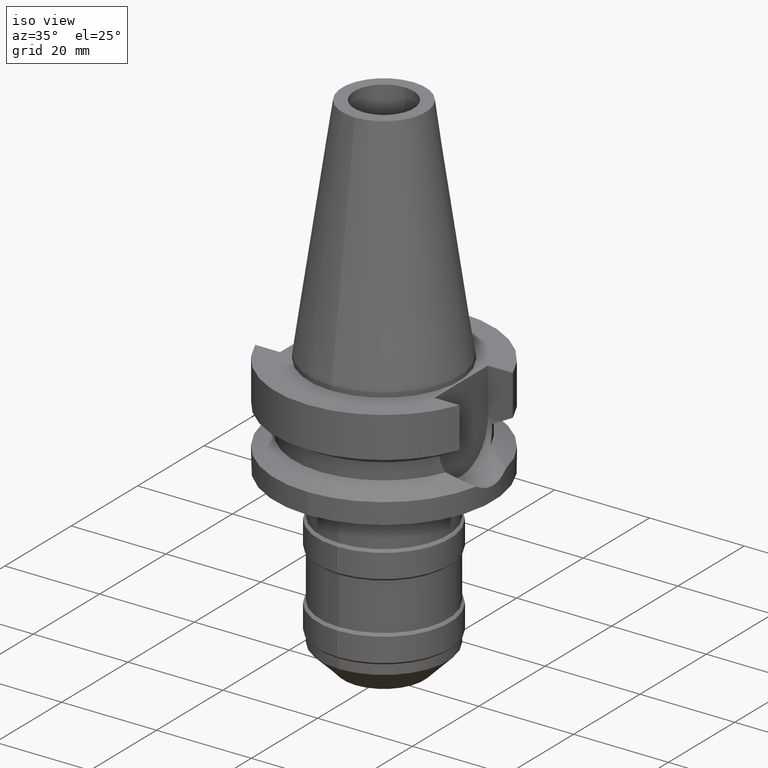
[diagram: clean part render]
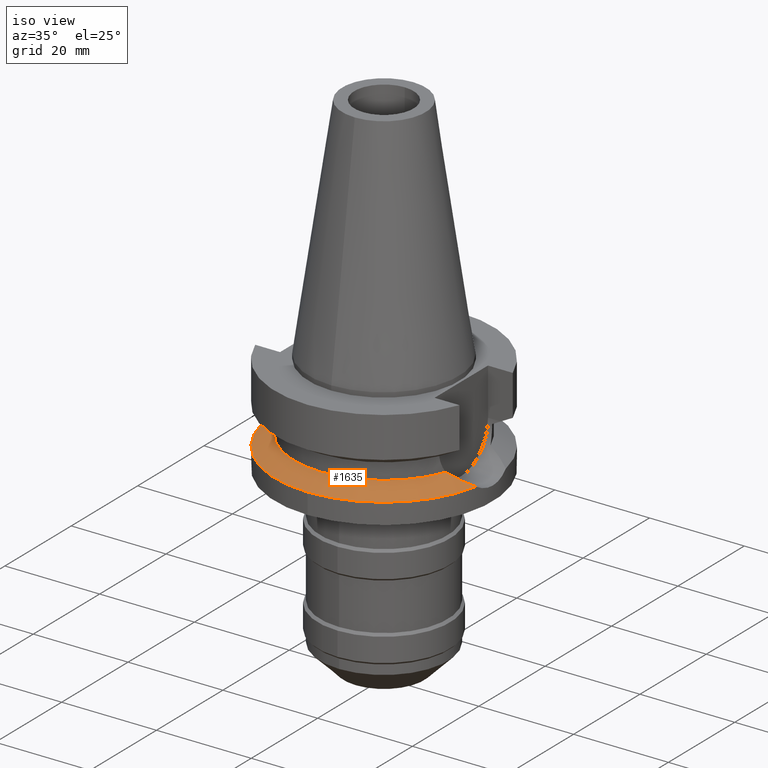
[diagram: same view with one face highlighted and labeled with its STEP entity id]
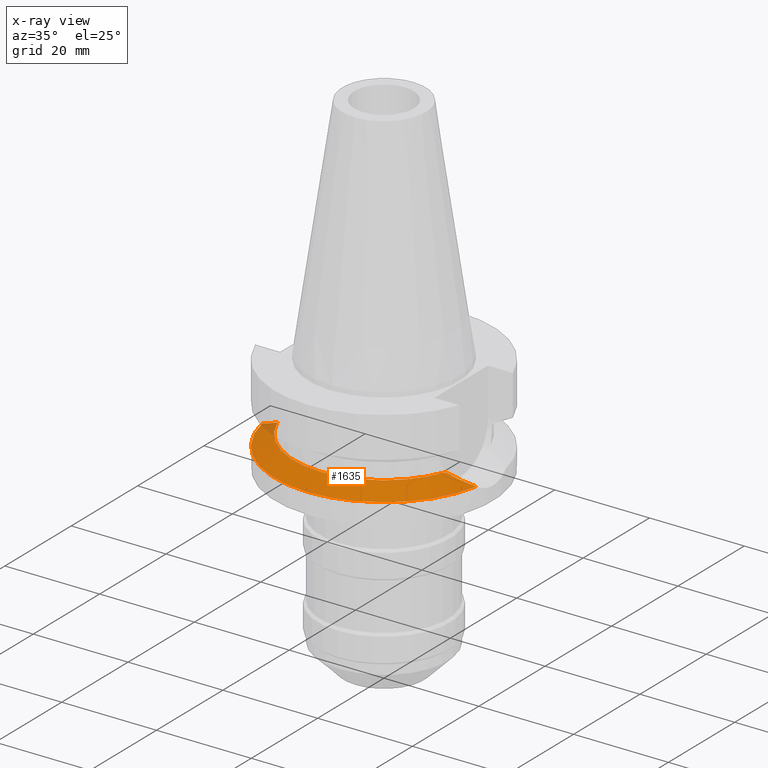
[diagram: x-ray of the same camera — body ghosted, the highlighted face saturated]
A machine part, iso view. The second image highlights one B-rep face of the part: STEP entity #1635.
The next image is the same camera in x-ray: the body ghosted, the highlighted face saturated — about 2% of this face is hidden behind the body in this view.
In plain terms, the highlighted conical surface has half-angle 60 deg.
Its self-contained STEP definition (entity closure, byte-faithful):
#430=CARTESIAN_POINT('',(-2.255786346208E1,-4.488072640470E0,
-1.763279163029E1));
#431=CARTESIAN_POINT('',(-2.228017927997E1,-4.688569610186E0,
-1.749814057216E1));
#432=CARTESIAN_POINT('',(-2.166787821129E1,-5.090950594505E0,
-1.720152106878E1));
#433=CARTESIAN_POINT('',(-2.057960286831E1,-5.677571393765E0,
-1.667586700988E1));
#434=CARTESIAN_POINT('',(-1.929756333508E1,-6.240846540616E0,
-1.605908252299E1));
#435=CARTESIAN_POINT('',(-1.829480318564E1,-6.592754206729E0,
-1.557936874226E1));
#436=CARTESIAN_POINT('',(-1.775736593456E1,-6.758398853744E0,
-1.532339055353E1));
#441=CARTESIAN_POINT('',(0.E0,1.022848384030E-14,-1.532339055353E1));
#442=DIRECTION('',(0.E0,0.E0,1.E0));
#443=DIRECTION('',(-9.345982070819E-1,-3.557052028286E-1,0.E0));
#444=AXIS2_PLACEMENT_3D('',#441,#442,#443);
#449=CARTESIAN_POINT('',(0.E0,1.022848384030E-14,-1.532339055353E1));
#450=DIRECTION('',(0.E0,0.E0,1.E0));
#451=DIRECTION('',(0.E0,-1.E0,0.E0));
#452=AXIS2_PLACEMENT_3D('',#449,#450,#451);
#457=CARTESIAN_POINT('',(1.775736593456E1,-6.758398853744E0,-1.532339055353E1));
#458=CARTESIAN_POINT('',(1.829476864477E1,-6.592764852641E0,-1.557935229065E1));
#459=CARTESIAN_POINT('',(1.929748728375E1,-6.240877283267E0,-1.605904600085E1));
#460=CARTESIAN_POINT('',(2.057961580027E1,-5.677567319426E0,-1.667587319758E1));
#461=CARTESIAN_POINT('',(2.166789871113E1,-5.090938004124E0,-1.720153099722E1));
#462=CARTESIAN_POINT('',(2.228018998920E1,-4.688561877773E0,-1.749814576514E1));
#463=CARTESIAN_POINT('',(2.255786346208E1,-4.488072640470E0,-1.763279163029E1));
#468=CARTESIAN_POINT('',(0.E0,1.022848384030E-14,-1.763279163029E1));
#469=DIRECTION('',(0.E0,0.E0,-1.E0));
#470=DIRECTION('',(9.807766722644E-1,-1.951335930639E-1,0.E0));
#471=AXIS2_PLACEMENT_3D('',#468,#469,#470);
#476=CARTESIAN_POINT('',(0.E0,1.022848384030E-14,-1.763279163029E1));
#477=DIRECTION('',(0.E0,0.E0,-1.E0));
#478=DIRECTION('',(0.E0,-1.E0,0.E0));
#479=AXIS2_PLACEMENT_3D('',#476,#477,#478);
#518=CARTESIAN_POINT('',(2.255786346208E1,-4.488072640470E0,-1.763279163029E1));
#1239=VERTEX_POINT('',#518);
#1242=CARTESIAN_POINT('',(0.E0,-2.3E1,-1.763279163029E1));
#1243=VERTEX_POINT('',#1242);
#1244=VERTEX_POINT('',#457);
#1257=VERTEX_POINT('',#430);
#1258=VERTEX_POINT('',#436);
#1259=CARTESIAN_POINT('',(0.E0,-1.9E1,-1.532339055353E1));
#1260=VERTEX_POINT('',#1259);
#1617=CARTESIAN_POINT('',(0.E0,1.022848384030E-14,-1.647809109191E1));
#1618=DIRECTION('',(0.E0,0.E0,-1.E0));
#1619=DIRECTION('',(0.E0,-1.E0,0.E0));
#1620=AXIS2_PLACEMENT_3D('',#1617,#1618,#1619);
#1621=CONICAL_SURFACE('',#1620,2.1E1,6.E1);
#1622=ORIENTED_EDGE('',*,*,#1598,.T.);
#1624=ORIENTED_EDGE('',*,*,#1623,.T.);
#1626=ORIENTED_EDGE('',*,*,#1625,.T.);
#1628=ORIENTED_EDGE('',*,*,#1627,.T.);
#1630=ORIENTED_EDGE('',*,*,#1629,.T.);
#1632=ORIENTED_EDGE('',*,*,#1631,.T.);
#1633=EDGE_LOOP('',(#1622,#1624,#1626,#1628,#1630,#1632));
#1634=FACE_OUTER_BOUND('',#1633,.F.);
#437=B_SPLINE_CURVE_WITH_KNOTS('',3,(#430,#431,#432,#433,#434,#435,#436),
.UNSPECIFIED.,.F.,.F.,(4,1,1,1,4),(0.E0,2.5E-1,5.E-1,7.5E-1,1.E0),
.UNSPECIFIED.);
#445=CIRCLE('',#444,1.9E1);
#453=CIRCLE('',#452,1.9E1);
#464=B_SPLINE_CURVE_WITH_KNOTS('',3,(#457,#458,#459,#460,#461,#462,#463),
.UNSPECIFIED.,.F.,.F.,(4,1,1,1,4),(0.E0,2.5E-1,5.E-1,7.5E-1,1.E0),
.UNSPECIFIED.);
#472=CIRCLE('',#471,2.3E1);
#480=CIRCLE('',#479,2.3E1);
#1598=EDGE_CURVE('',#1257,#1258,#437,.T.);
#1623=EDGE_CURVE('',#1258,#1260,#445,.T.);
#1625=EDGE_CURVE('',#1260,#1244,#453,.T.);
#1627=EDGE_CURVE('',#1244,#1239,#464,.T.);
#1629=EDGE_CURVE('',#1239,#1243,#472,.T.);
#1631=EDGE_CURVE('',#1243,#1257,#480,.T.);
#1635=ADVANCED_FACE('',(#1634),#1621,.T.);